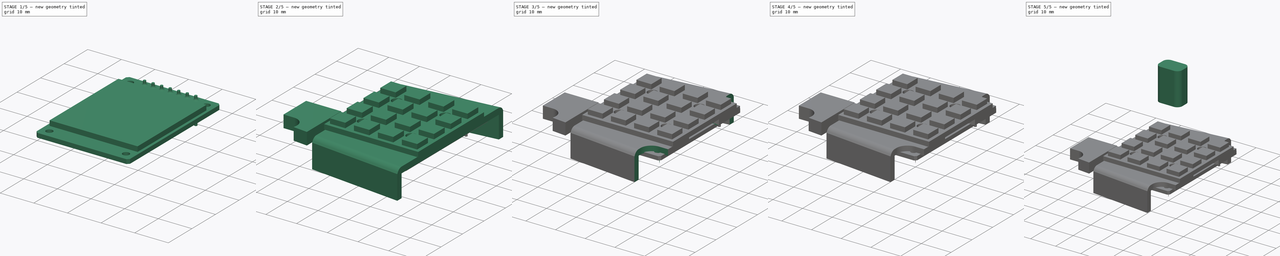
[diagram: build sequence overview — one tinted view per stage of 5, left to right]
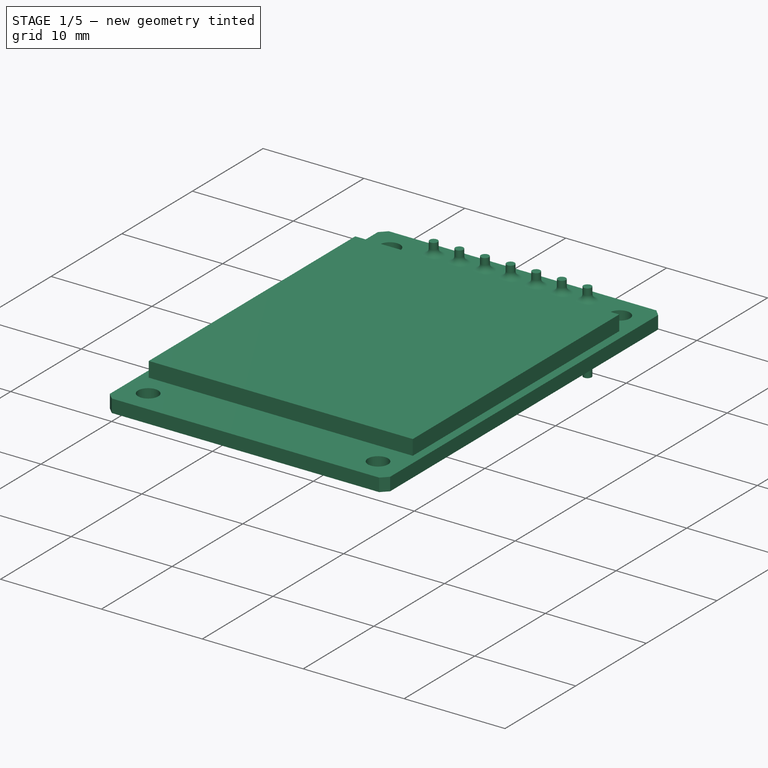
[diagram: stage 1 of 5 — iso view after this stage's code; geometry added in this stage tinted green]
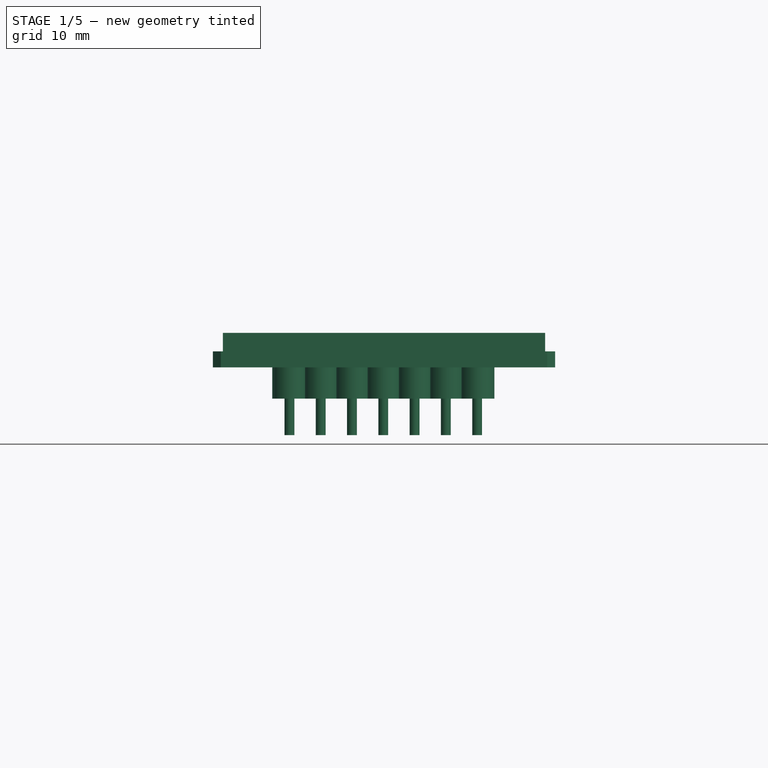
[diagram: stage 1 of 5 — front view after this stage's code; geometry added in this stage tinted green]
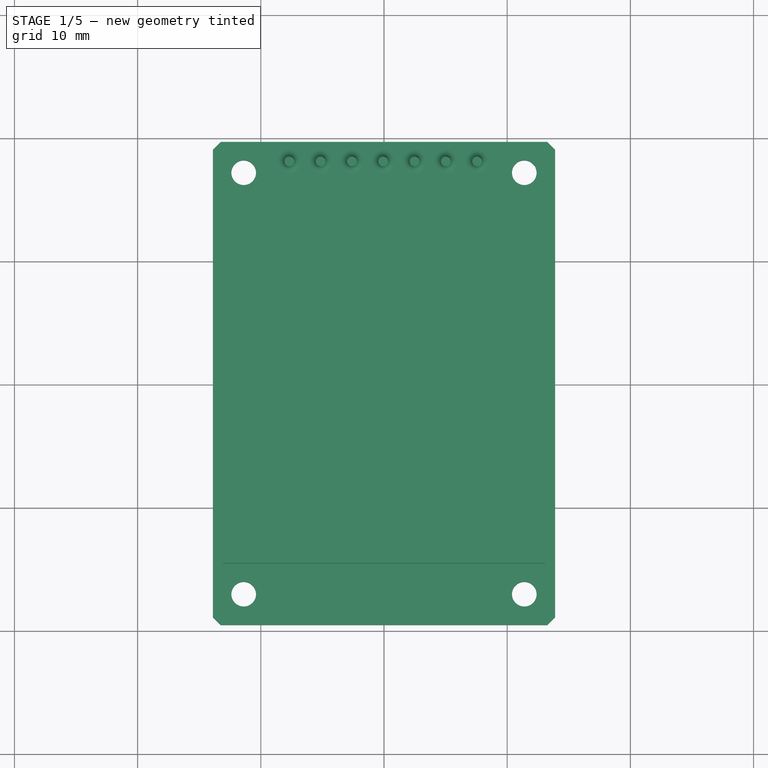
[diagram: stage 1 of 5 — top view after this stage's code; geometry added in this stage tinted green]
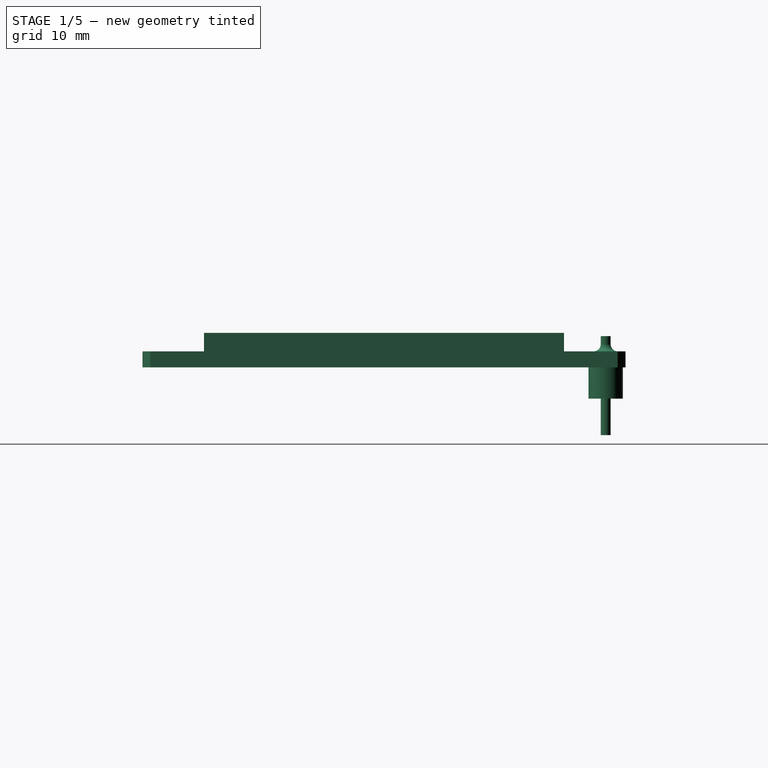
[diagram: stage 1 of 5 — right view after this stage's code; geometry added in this stage tinted green]
FCSTD DOCUMENT  (FreeCAD 0.20R29410 (Git))
Label: NightLight rotary 2
License: All rights reserved
LicenseURL: http://en.wikipedia.org/wiki/All_rights_reserved
objects: Sketcher::SketchObject×22, PartDesign::Body×10, PartDesign::Pocket×10, PartDesign::Pad×5, PartDesign::Revolution×5, PartDesign::PolarPattern×4, Part::Feature×2, PartDesign::LinearPattern×2, PartDesign::AdditiveLoft×1, PartDesign::Mirrored×1, Part::FeaturePython×1, App::Part×1
note: 84 computed .brp shape members not serialized (recipe doc carries the construction recipe); baked Part::Feature solids carry a one-line shape summary decoded from their .brp

FEATURE [Part::Feature] Part__Feature020  label="EC11E-05SW"
  Placement = pos=(16.9,27.3,-2.6) rot=(0,0,-1;3.14159rad)
  shape: bbox 11.71 x 15.08 x 23.16 mm, 583 faces (baked)
FEATURE [Sketcher::SketchObject] Sketch068  label="pcb"
  FullyConstrained = false
  MapMode = 5
  Support = -> [XY_Plane001]
  sketch-geometry (25):
    g0: LineSegment StartX=-13.25 StartY=19.61 StartZ=0 EndX=13.25 EndY=19.61 EndZ=0
    g1: LineSegment StartX=13.89 StartY=18.97 StartZ=0 EndX=13.89 EndY=-18.97 EndZ=0
    g2: LineSegment StartX=13.25 StartY=-19.61 StartZ=0 EndX=-13.25 EndY=-19.61 EndZ=0
    g3: LineSegment StartX=-13.89 StartY=-18.97 StartZ=0 EndX=-13.89 EndY=18.97 EndZ=0
    g4: LineSegment StartX=-13.25 StartY=19.61 StartZ=0 EndX=-13.89 EndY=18.97 EndZ=0
    g5: LineSegment StartX=-13.89 StartY=-18.97 StartZ=0 EndX=-13.25 EndY=-19.61 EndZ=0
    g6: LineSegment StartX=13.25 StartY=-19.61 StartZ=0 EndX=13.89 EndY=-18.97 EndZ=0
    g7: LineSegment StartX=13.89 StartY=18.97 StartZ=0 EndX=13.25 EndY=19.61 EndZ=0
    g8: LineSegment StartX=13.89 StartY=18.97 StartZ=0 EndX=13.89 EndY=19.61 EndZ=0
    g9: LineSegment StartX=13.89 StartY=19.61 StartZ=0 EndX=13.25 EndY=19.61 EndZ=0
    g10: LineSegment StartX=-13.25 StartY=19.61 StartZ=0 EndX=-13.89 EndY=19.61 EndZ=0
    g11: LineSegment StartX=-13.89 StartY=19.61 StartZ=0 EndX=-13.89 EndY=18.97 EndZ=0
    g12: LineSegment StartX=-13.89 StartY=-18.97 StartZ=0 EndX=-13.89 EndY=-19.61 EndZ=0
    g13: LineSegment StartX=-13.89 StartY=-19.61 StartZ=0 EndX=-13.25 EndY=-19.61 EndZ=0
    g14: LineSegment StartX=13.25 StartY=-19.61 StartZ=0 EndX=13.89 EndY=-19.61 EndZ=0
    g15: LineSegment StartX=13.89 StartY=-19.61 StartZ=0 EndX=13.89 EndY=-18.97 EndZ=0
    g16: LineSegment StartX=-11.39 StartY=17.11 StartZ=0 EndX=11.39 EndY=17.11 EndZ=0
    g17: LineSegment StartX=11.39 StartY=17.11 StartZ=0 EndX=11.39 EndY=-17.11 EndZ=0
    g18: LineSegment StartX=11.39 StartY=-17.11 StartZ=0 EndX=-11.39 EndY=-17.11 EndZ=0
    g19: LineSegment StartX=-11.39 StartY=-17.11 StartZ=0 EndX=-11.39 EndY=17.11 EndZ=0
    g20: Circle CenterX=11.39 CenterY=17.11 CenterZ=0 NormalX=0 NormalY=0 NormalZ=1 AngleXU=0 Radius=1
    g21: Circle CenterX=11.39 CenterY=17.11 CenterZ=0 NormalX=0 NormalY=0 NormalZ=1 AngleXU=0 Radius=2.5
    g22: Circle CenterX=-11.39 CenterY=17.11 CenterZ=0 NormalX=0 NormalY=0 NormalZ=1 AngleXU=0 Radius=1
    g23: Circle CenterX=-11.39 CenterY=-17.11 CenterZ=0 NormalX=0 NormalY=0 NormalZ=1 AngleXU=0 Radius=1
    g24: Circle CenterX=11.39 CenterY=-17.11 CenterZ=0 NormalX=0 NormalY=0 NormalZ=1 AngleXU=0 Radius=1
  constraints (62):
    c: Horizontal(g0)
    c: Horizontal(g2)
    c: Vertical(g1)
    c: Vertical(g3)
    c: Coincident(g4,g0)
    c: Coincident(g4,g3)
    c: Coincident(g3,g5)
    c: Coincident(g5,g2)
    c: Coincident(g2,g6)
    c: Coincident(g6,g1)
    c: Coincident(g1,g7)
    c: Coincident(g7,g0)
    c: Coincident(g1,g8)
    c: Vertical(g8)
    c: Coincident(g8,g9)
    c: Coincident(g9,g0)
    c: DistanceY(g8,g8) = 0.64
    c: Horizontal(g9)
    c: Equal(g8,g9)
    c: Coincident(g0,g10)
    c: Coincident(g10,g11)
    c: Coincident(g11,g3)
    c: Vertical(g11)
    c: Equal(g10,g11)
    c: Symmetric(g8,g10,g-2)
    c: Coincident(g3,g12)
    c: Vertical(g12)
    c: Coincident(g12,g13)
    c: Coincident(g13,g2)
    c: Coincident(g2,g14)
    c: Horizontal(g14)
    c: Coincident(g14,g15)
    c: Coincident(g15,g1)
    c: Equal(g8,g15)
    c: Equal(g15,g14)
    c: Equal(g14,g13)
    c: Equal(g13,g12)
    c: Horizontal(g13)
    c: Symmetric(g8,g14,g-1)
    c: DistanceX(g10,g8) = 27.78
    c: Equal(g10,g9)
    c: DistanceY(g14,g8) = 39.22
    c: Coincident(g16,g17)
    c: Coincident(g17,g18)
    c: Coincident(g18,g19)
    c: Coincident(g19,g16)
    c: Horizontal(g18)
    c: Vertical(g19)
    c: Symmetric(g16,g16,g-2)
    c: Symmetric(g17,g16,g-1)
    c: Coincident(g20,g16)
    c: Radius(g20) = 1
    c: Coincident(g21,g20)
    c: Tangent(g21,g1)
    c: Tangent(g0,g21)
    c: DistanceX(g20,g8) = 2.5
    c: Coincident(g22,g16)
    c: Coincident(g23,g18)
    c: Coincident(g24,g17)
    c: Equal(g20,g22)
    c: Equal(g22,g23)
    c: Equal(g23,g24)
FEATURE [PartDesign::Pad] Pad021  label="PCB"
  AllowMultiFace = false
  Direction = (1,1,1)
  Length = 1.3
  Length2 = 100
  Profile = -> Sketch068
  Type = 0
FEATURE [Sketcher::SketchObject] Sketch001  label="glass"
  AttachmentOffset = pos=(0,0,2.8) rot=(0,0,1;0rad)
  ExternalGeometry = -> [Pad021]
  FullyConstrained = false
  MapMode = 5
  Placement = pos=(0,0,2.8) rot=(0,0,1;0rad)
  Support = -> [XY_Plane002]
  sketch-geometry (4):
    g0: LineSegment StartX=13.08 StartY=14.61 StartZ=0 EndX=-13.08 EndY=14.61 EndZ=0
    g1: LineSegment StartX=-13.08 StartY=14.61 StartZ=0 EndX=-13.08 EndY=-14.61 EndZ=0
    g2: LineSegment StartX=-13.08 StartY=-14.61 StartZ=0 EndX=13.08 EndY=-14.61 EndZ=0
    g3: LineSegment StartX=13.08 StartY=-14.61 StartZ=0 EndX=13.08 EndY=14.61 EndZ=0
  constraints (11):
    c: Coincident(g0,g1)
    c: Coincident(g1,g2)
    c: Coincident(g2,g3)
    c: Horizontal(g2)
    c: Vertical(g1)
    c: Symmetric(g0,g0,g-2)
    c: DistanceY(g3,g3) = 29.22
    c: Vertical(g3)
    c: DistanceY(g0,g-3) = 5
    c: DistanceX(g0,g-3) = 0.81
    c: Coincident(g3,g0)
FEATURE [Sketcher::SketchObject] Sketch002  label="pinHole"
  ExternalGeometry = -> [Pad021]
  FullyConstrained = false
  MapMode = 5
  Support = -> [XY_Plane001]
  sketch-geometry (1):
    g0: Circle CenterX=-7.62 CenterY=18.01 CenterZ=0 NormalX=0 NormalY=0 NormalZ=1 AngleXU=0 Radius=0.5
  constraints (3):
    c: DistanceX(g-3,g0) = 6.27
    c: DistanceY(g0,g-3) = 1.6
    c: Radius(g0) = 0.5
FEATURE [PartDesign::Pad] Pad001  label="Glass"
  AllowMultiFace = false
  Direction = (1,1,1)
  Length = 2
  Length2 = 100
  Profile = -> Sketch001
  Reversed = true
  Type = 0
FEATURE [PartDesign::Body] Body001  label="GLASS"
  Group = -> [Sketch001,Pad001,Sketch003,Pocket001,Sketch004,Pad002]
  Origin = -> Origin002
  Tip = -> Pad002
FEATURE [PartDesign::Pocket] Pocket  label="FirstPinhole"
  AllowMultiFace = false
  BaseFeature = -> Pad021
  Direction = (1,1,1)
  Length = 5
  Length2 = 100
  Midplane = true
  Profile = -> Sketch002
  Type = 1
FEATURE [PartDesign::LinearPattern] LinearPattern
  BaseFeature = -> Pocket
  Direction = -> X_Axis001
  Length = 15.24
  Occurrences = 7
  Originals = -> [Pocket]
FEATURE [PartDesign::Body] Body013  label="SCREEN"
  Group = -> [Sketch068,Pad021,Sketch002,Pocket,LinearPattern]
  Origin = -> Origin001
  Tip = -> LinearPattern
FEATURE [Sketcher::SketchObject] Sketch005
  AttachmentOffset = pos=(0,0,-7.68) rot=(0,0,1;0rad)
  FullyConstrained = false
  MapMode = 5
  Placement = pos=(-7.68,1.7e-15,-1.7e-15) rot=(0.57735,0.57735,0.57735;2.0944rad)
  Support = -> [YZ_Plane003]
  sketch-geometry (12):
    g0: LineSegment StartX=18 StartY=2.54 StartZ=0 EndX=18 EndY=-5.5 EndZ=0
    g1: LineSegment StartX=18 StartY=-5.5 StartZ=0 EndX=18.4 EndY=-5.5 EndZ=0
    g2: LineSegment StartX=18.4 StartY=-5.5 StartZ=0 EndX=18.4 EndY=-2.54 EndZ=0
    g3: LineSegment StartX=18.4 StartY=0 StartZ=0 EndX=18.4 EndY=1.3 EndZ=0
    g4: LineSegment StartX=18.4 StartY=2.54 StartZ=0 EndX=18 EndY=2.54 EndZ=0
    g5: LineSegment StartX=18 StartY=2.54 StartZ=0 EndX=18 EndY=3.84 EndZ=0
    g6: ArcOfCircle CenterX=19 CenterY=1.9 CenterZ=0 NormalX=0 NormalY=0 NormalZ=1 AngleXU=0 Radius=0.6 StartAngle=3.14159 EndAngle=4.71239
    g7: LineSegment StartX=19 StartY=1.3 StartZ=0 EndX=18.4 EndY=1.3 EndZ=0
    g8: LineSegment StartX=18.4 StartY=1.9 StartZ=0 EndX=18.4 EndY=2.54 EndZ=0
    g9: LineSegment StartX=18.4 StartY=-2.54 StartZ=0 EndX=19.397 EndY=-2.54 EndZ=0
    g10: LineSegment StartX=19.397 StartY=-2.54 StartZ=0 EndX=19.397 EndY=0 EndZ=0
    g11: LineSegment StartX=19.397 StartY=0 StartZ=0 EndX=18.4 EndY=0 EndZ=0
  constraints (34):
    c: Vertical(g0)
    c: Coincident(g0,g1)
    c: Horizontal(g1)
    c: Coincident(g1,g2)
    c: Vertical(g2)
    c: Vertical(g3)
    c: Coincident(g8,g4)
    c: Coincident(g4,g0)
    c: Horizontal(g4)
    c: PointOnObject(g2,g3)
    c: Coincident(g5,g0)
    c: DistanceX(g4,g4) = 0.4
    c: Vertical(g5)
    c: DistanceY(g8) = 2.54
    c: DistanceY(g1,g-1) = 5.5
    c: Equal(g3,g5)
    c: DistanceX(g5) = 18
    c: Horizontal(g7)
    c: Tangent(g3,g8)
    c: Tangent(g6,g8) = 1.5708
    c: Coincident(g3,g7)
    c: Tangent(g6,g7) = 1.5708
    c: DistanceY(g6) = 1.3
    c: Radius(g6) = 0.6
    c: Coincident(g9,g10)
    c: Coincident(g10,g11)
    c: Horizontal(g9)
    c: Horizontal(g11)
    c: Vertical(g10)
    c: Coincident(g9,g2)
    c: Coincident(g11,g3)
    c: PointOnObject(g10,g-1)
    c: DistanceY(g10,g10) = 2.54
    c: DistanceX(g0,g9) = 1.397
FEATURE [PartDesign::Revolution] Revolution
  AllowMultiFace = false
  Angle = 360
  Axis = (-3e-16,4e-16,1.3)
  Base = (-7.68,18,2.54)
  Placement = pos=(0,0,0) rot=(0.57735,0.57735,0.57735;2.0944rad)
  Profile = -> Sketch005
  ReferenceAxis = -> Sketch005 [Axis0]
  Reversed = true
FEATURE [PartDesign::LinearPattern] LinearPattern001
  BaseFeature = -> Revolution
  Direction = -> X_Axis003
  Length = 15.24
  Occurrences = 7
  Originals = -> [Revolution]
  Placement = pos=(0,0,0) rot=(0.57735,0.57735,0.57735;2.0944rad)
FEATURE [PartDesign::Body] Body002  label="FIRSTPIN"
  Group = -> [Sketch005,Revolution,LinearPattern001]
  Origin = -> Origin003
  Tip = -> LinearPattern001
FEATURE [App::Part] Part  label="1.3"Screen"
  Group = -> [Body013,Body001,Body002]
  Origin = -> Origin009
  Placement = pos=(19.4,-0.8,3.4) rot=(0.707107,0,0.707107;3.14159rad)
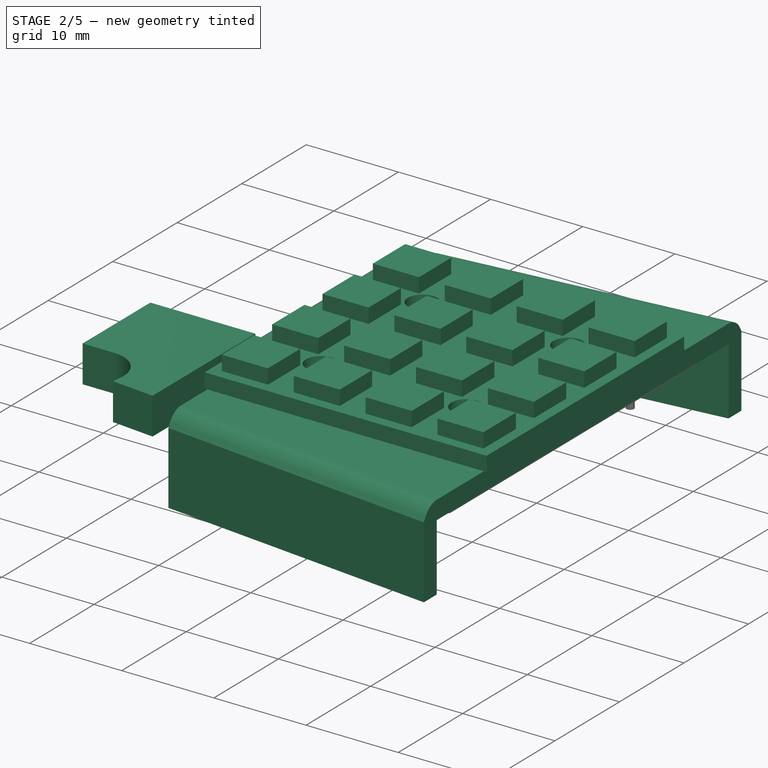
[diagram: stage 2 of 5 — iso view after this stage's code; geometry added in this stage tinted green]
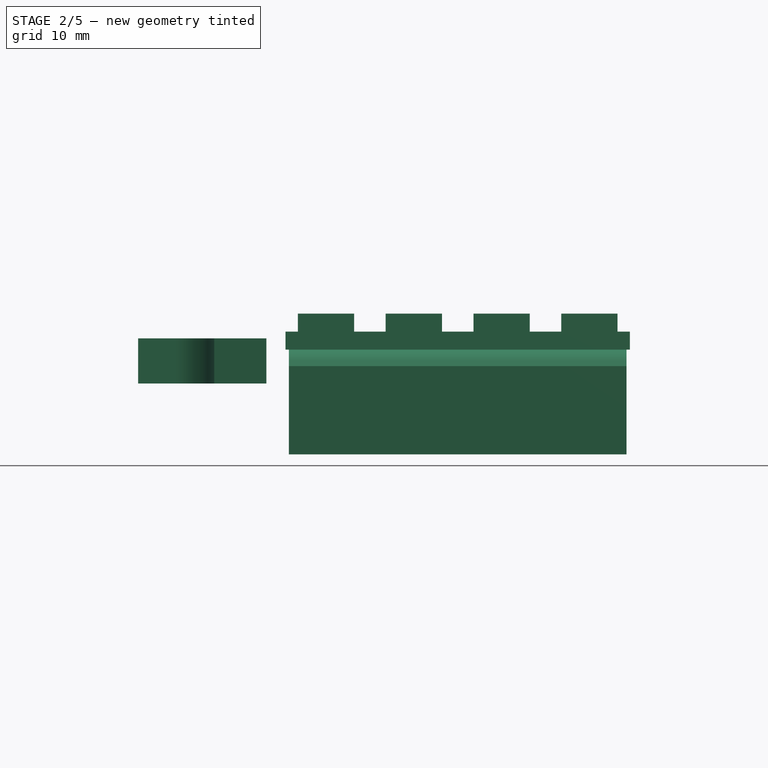
[diagram: stage 2 of 5 — front view after this stage's code; geometry added in this stage tinted green]
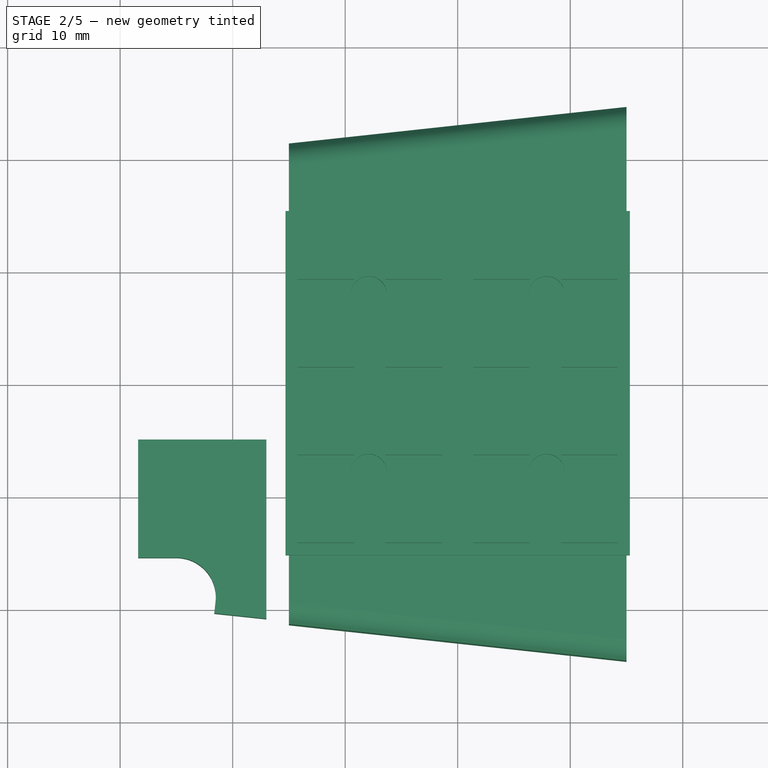
[diagram: stage 2 of 5 — top view after this stage's code; geometry added in this stage tinted green]
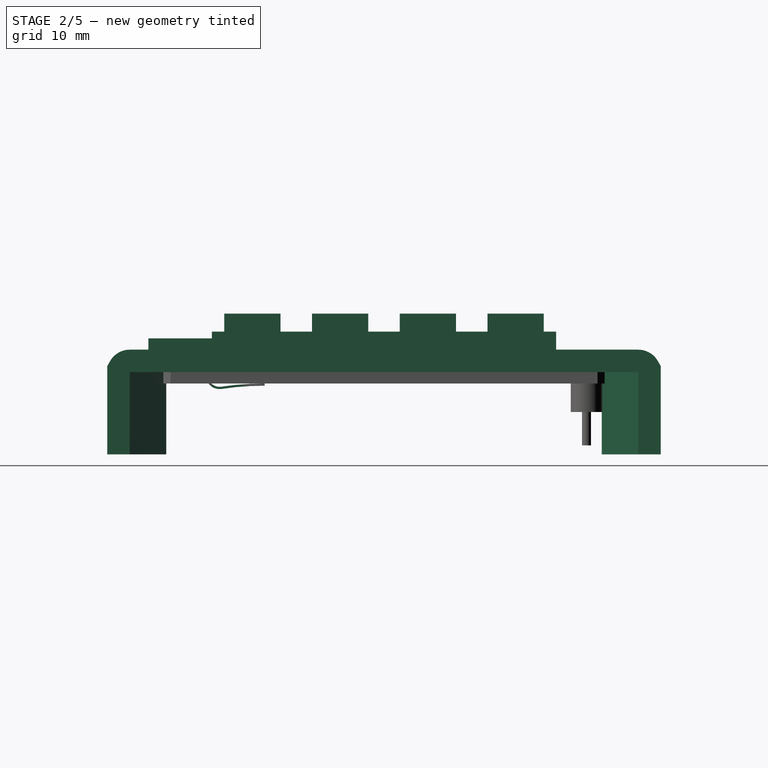
[diagram: stage 2 of 5 — right view after this stage's code; geometry added in this stage tinted green]
FEATURE [PartDesign::Body] Body009  label="SelftappingScrew 2.3x12 - Bottom4"
  Group = -> [Sketch017,Revolution005,Sketch018,Pocket005,PolarPattern005]
  Placement = pos=(12,-21,-6.7) rot=(0,1,0;3.14159rad)
  Tip = -> PolarPattern005
FEATURE [Sketcher::SketchObject] Sketch046  label="m base shape -15"
  AttachmentOffset = pos=(0,0,-15) rot=(0,0,1;0rad)
  FullyConstrained = false
  MapMode = 5
  Placement = pos=(-15,3.3e-15,-3.3e-15) rot=(0.57735,0.57735,0.57735;2.0944rad)
  Support = -> [YZ_Plane007]
  sketch-geometry (12):
    g0: LineSegment StartX=-19.35 StartY=3 StartZ=0 EndX=19.35 EndY=3 EndZ=0
    g1: LineSegment StartX=21.35 StartY=1.5359 StartZ=0 EndX=21.35 EndY=-6.3 EndZ=0
    g2: LineSegment StartX=21.35 StartY=-6.3 StartZ=0 EndX=19.35 EndY=-6.3 EndZ=0
    g3: LineSegment StartX=-21.35 StartY=-6.3 StartZ=0 EndX=-21.35 EndY=1.5359 EndZ=0
    g4: LineSegment StartX=-19.35 StartY=-6.3 StartZ=0 EndX=-19.35 EndY=1 EndZ=0
    g5: LineSegment StartX=-19.35 StartY=1 StartZ=0 EndX=19.35 EndY=1 EndZ=0
    g6: LineSegment StartX=19.35 StartY=1 StartZ=0 EndX=19.35 EndY=-6.3 EndZ=0
    g7: LineSegment StartX=-19.35 StartY=-6.3 StartZ=0 EndX=-21.35 EndY=-6.3 EndZ=0
    g8: ArcOfCircle CenterX=-19.35 CenterY=1 CenterZ=0 NormalX=0 NormalY=0 NormalZ=1 AngleXU=0 Radius=2 StartAngle=1.5708 EndAngle=2.61799
    g9: LineSegment StartX=-21.0821 StartY=2 StartZ=0 EndX=-21.35 EndY=1.5359 EndZ=0
    g10: ArcOfCircle CenterX=19.35 CenterY=1 CenterZ=0 NormalX=0 NormalY=0 NormalZ=1 AngleXU=0 Radius=2 StartAngle=0.523599 EndAngle=1.5708
    g11: LineSegment StartX=21.0821 StartY=2 StartZ=0 EndX=21.35 EndY=1.5359 EndZ=0
  constraints (29):
    c: Coincident(g1,g2)
    c: Coincident(g7,g3)
    c: Horizontal(g0)
    c: Vertical(g1)
    c: Vertical(g3)
    c: Coincident(g4,g5)
    c: Coincident(g5,g6)
    c: Vertical(g4)
    c: Vertical(g6)
    c: Tangent(g2,g7)
    c: Coincident(g4,g7)
    c: Coincident(g6,g2)
    c: DistanceY(g2,g-1) = 6.3
    c: Symmetric(g3,g1,g-2)
    c: Coincident(g8,g4)
    c: Tangent(g0,g8) = 1.5708
    c: DistanceY(g0) = 3
    c: DistanceX(g7,g7) = 2
    c: DistanceY(g4) = 1
    c: Tangent(g9,g8) = -1.5708
    c: Coincident(g3,g9)
    c: Angle(g9,g4) = 0.523599
    c: Symmetric(g5,g4,g-2)
    c: Coincident(g10,g5)
    c: Tangent(g0,g10) = 1.5708
    c: Tangent(g10,g11) = 1.5708
    c: Coincident(g1,g11)
    c: Horizontal(g1,g3)
    c: DistanceX(g3,g1) = 42.7
FEATURE [Sketcher::SketchObject] Sketch047  label="m screw holes"
  FullyConstrained = false
  MapMode = 5
  Support = -> [XY_Plane007]
  sketch-geometry (8):
    g0: LineSegment StartX=7.9 StartY=7.9 StartZ=0 EndX=-7.9 EndY=7.9 EndZ=0
    g1: LineSegment StartX=-7.9 StartY=7.9 StartZ=0 EndX=-7.9 EndY=-7.9 EndZ=0
    g2: LineSegment StartX=-7.9 StartY=-7.9 StartZ=0 EndX=7.9 EndY=-7.9 EndZ=0
    g3: LineSegment StartX=7.9 StartY=-7.9 StartZ=0 EndX=7.9 EndY=7.9 EndZ=0
    g4: Circle CenterX=7.9 CenterY=7.9 CenterZ=0 NormalX=0 NormalY=0 NormalZ=1 AngleXU=0 Radius=0.8
    g5: Circle CenterX=-7.9 CenterY=7.9 CenterZ=0 NormalX=0 NormalY=0 NormalZ=1 AngleXU=0 Radius=0.8
    g6: Circle CenterX=-7.9 CenterY=-7.9 CenterZ=0 NormalX=0 NormalY=0 NormalZ=1 AngleXU=0 Radius=0.8
    g7: Circle CenterX=7.9 CenterY=-7.9 CenterZ=0 NormalX=0 NormalY=0 NormalZ=1 AngleXU=0 Radius=0.8
  constraints (18):
    c: Coincident(g0,g1)
    c: Coincident(g1,g2)
    c: Coincident(g2,g3)
    c: Coincident(g3,g0)
    c: Horizontal(g2)
    c: Vertical(g1)
    c: Equal(g3,g0)
    c: Symmetric(g0,g2,g-1)
    c: Symmetric(g0,g0,g-2)
    c: DistanceX(g0,g0) = 15.8
    c: Coincident(g4,g0)
    c: Radius(g4) = 0.8
    c: Coincident(g5,g0)
    c: Coincident(g6,g1)
    c: Coincident(g7,g2)
    c: Equal(g4,g7)
    c: Equal(g7,g6)
    c: Equal(g6,g5)
FEATURE [Sketcher::SketchObject] Sketch048  label="m wire cut"
  FullyConstrained = false
  MapMode = 5
  Support = -> [XY_Plane007]
  sketch-geometry (4):
    g0: LineSegment StartX=9 StartY=5 StartZ=0 EndX=16 EndY=7.54779 EndZ=0
    g1: LineSegment StartX=16 StartY=7.54779 StartZ=0 EndX=16 EndY=-7.54779 EndZ=0
    g2: LineSegment StartX=16 StartY=-7.54779 StartZ=0 EndX=9 EndY=-5 EndZ=0
    g3: LineSegment StartX=9 StartY=-5 StartZ=0 EndX=9 EndY=5 EndZ=0
  constraints (10):
    c: Coincident(g0,g1)
    c: Coincident(g1,g2)
    c: Coincident(g2,g3)
    c: Coincident(g3,g0)
    c: Symmetric(g2,g0,g-1)
    c: Symmetric(g1,g0,g-1)
    c: DistanceX(g2) = 9
    c: DistanceY(g3,g3) = 10
    c: Angle(g2,g0) = 0.698132
    c: DistanceX(g0,g0) = 7
FEATURE [Sketcher::SketchObject] Sketch050  label="m corner cutout"
  FullyConstrained = false
  MapMode = 5
  Support = -> [XY_Plane007]
  sketch-geometry (5):
    g0: LineSegment StartX=8.3 StartY=30 StartZ=0 EndX=18.3 EndY=30 EndZ=0
    g1: LineSegment StartX=18.3 StartY=30 StartZ=0 EndX=18.3 EndY=17.3 EndZ=0
    g2: LineSegment StartX=8.3 StartY=21 StartZ=0 EndX=8.3 EndY=30 EndZ=0
    g3: ArcOfCircle CenterX=12 CenterY=21 CenterZ=0 NormalX=0 NormalY=0 NormalZ=1 AngleXU=0 Radius=3.7 StartAngle=3.14159 EndAngle=4.71239
    g4: LineSegment StartX=12 StartY=17.3 StartZ=0 EndX=18.3 EndY=17.3 EndZ=0
  constraints (14):
    c: Coincident(g0,g1)
    c: Coincident(g2,g0)
    c: Horizontal(g0)
    c: Vertical(g1)
    c: DistanceX(g0,g0) = 10
    c: DistanceX(g2) = 8.3
    c: Vertical(g2)
    c: DistanceY(g0) = 30
    c: Horizontal(g4)
    c: DistanceX(g3) = 12
    c: DistanceY(g3) = 21
    c: Tangent(g3,g4) = -1.5708
    c: Coincident(g4,g1)
    c: Tangent(g2,g3) = 1.5708
FEATURE [Sketcher::SketchObject] Sketch058  label="m base shape +15"
  AttachmentOffset = pos=(0,0,15) rot=(0,0,1;0rad)
  FullyConstrained = false
  MapMode = 5
  Placement = pos=(15,-3.3e-15,3.3e-15) rot=(0.57735,0.57735,0.57735;2.0944rad)
  Support = -> [YZ_Plane007]
  sketch-geometry (12):
    g0: LineSegment StartX=-22.6 StartY=3 StartZ=0 EndX=22.6 EndY=3 EndZ=0
    g1: LineSegment StartX=24.6 StartY=1.5359 StartZ=0 EndX=24.6 EndY=-6.3 EndZ=0
    g2: LineSegment StartX=24.6 StartY=-6.3 StartZ=0 EndX=22.6 EndY=-6.3 EndZ=0
    g3: LineSegment StartX=-24.6 StartY=-6.3 StartZ=0 EndX=-24.6 EndY=1.5359 EndZ=0
    g4: LineSegment StartX=-22.6 StartY=-6.3 StartZ=0 EndX=-22.6 EndY=1 EndZ=0
    g5: LineSegment StartX=-22.6 StartY=1 StartZ=0 EndX=22.6 EndY=1 EndZ=0
    g6: LineSegment StartX=22.6 StartY=1 StartZ=0 EndX=22.6 EndY=-6.3 EndZ=0
    g7: LineSegment StartX=-22.6 StartY=-6.3 StartZ=0 EndX=-24.6 EndY=-6.3 EndZ=0
    g8: ArcOfCircle CenterX=-22.6 CenterY=1 CenterZ=0 NormalX=0 NormalY=0 NormalZ=1 AngleXU=0 Radius=2 StartAngle=1.5708 EndAngle=2.61799
    g9: LineSegment StartX=-24.3321 StartY=2 StartZ=0 EndX=-24.6 EndY=1.5359 EndZ=0
    g10: ArcOfCircle CenterX=22.6 CenterY=1 CenterZ=0 NormalX=0 NormalY=0 NormalZ=1 AngleXU=0 Radius=2 StartAngle=0.523599 EndAngle=1.5708
    g11: LineSegment StartX=24.3321 StartY=2 StartZ=0 EndX=24.6 EndY=1.5359 EndZ=0
  constraints (29):
    c: Coincident(g1,g2)
    c: Coincident(g7,g3)
    c: Horizontal(g0)
    c: Vertical(g1)
    c: Vertical(g3)
    c: Coincident(g4,g5)
    c: Coincident(g5,g6)
    c: Vertical(g4)
    c: Vertical(g6)
    c: Tangent(g2,g7)
    c: Coincident(g4,g7)
    c: Coincident(g6,g2)
    c: DistanceY(g2,g-1) = 6.3
    c: Symmetric(g3,g1,g-2)
    c: Coincident(g8,g4)
    c: Tangent(g0,g8) = 1.5708
    c: DistanceY(g0) = 3
    c: DistanceX(g7,g7) = 2
    c: DistanceY(g4) = 1
    c: Tangent(g9,g8) = -1.5708
    c: Coincident(g3,g9)
    c: Angle(g9,g4) = 0.523599
    c: Symmetric(g5,g4,g-2)
    c: Coincident(g10,g5)
    c: Tangent(g0,g10) = 1.5708
    c: Tangent(g10,g11) = 1.5708
    c: Coincident(g1,g11)
    c: Horizontal(g1,g3)
    c: DistanceX(g3,g1) = 49.2
FEATURE [PartDesign::AdditiveLoft] AdditiveLoft  label="M Base shape"
  AllowMultiFace = false
  Closed = false
  Placement = pos=(0,0,0) rot=(0.57735,0.57735,0.57735;2.0944rad)
  Profile = -> Sketch046
  Ruled = false
  Sections = -> [Sketch058]
FEATURE [PartDesign::Body] Body011  label="Bridge"
  Group = -> [Sketch046,Sketch047,Sketch048,Sketch050,Sketch058,AdditiveLoft,Pocket027,Pocket028,Pocket030,Mirrored011]
  Origin = -> Origin007
  Tip = -> Mirrored011
FEATURE [Sketcher::SketchObject] Sketch066  label="l baseshape"
  FullyConstrained = false
  MapMode = 5
  Support = -> [XY_Plane008]
  sketch-geometry (7):
    g0: LineSegment StartX=-28.4 StartY=-5 StartZ=0 EndX=-17 EndY=-5 EndZ=0
    g1: LineSegment StartX=-17 StartY=-5 StartZ=0 EndX=-17 EndY=-20.9377 EndZ=0
    g2: LineSegment StartX=-17 StartY=-20.9377 StartZ=0 EndX=-21.6332 EndY=-20.4507 EndZ=0
    g3: LineSegment StartX=-28.4 StartY=-15.5 StartZ=0 EndX=-28.4 EndY=-5 EndZ=0
    g4: ArcOfCircle CenterX=-25 CenterY=-19 CenterZ=0 NormalX=0 NormalY=0 NormalZ=1 AngleXU=0 Radius=3.5 StartAngle=6.17847 EndAngle=7.85398
    g5: LineSegment StartX=-25 StartY=-15.5 StartZ=0 EndX=-28.4 EndY=-15.5 EndZ=0
    g6: LineSegment StartX=-21.5192 StartY=-19.3658 StartZ=0 EndX=-21.6332 EndY=-20.4507 EndZ=0
  constraints (20):
    c: Coincident(g0,g1)
    c: Coincident(g1,g2)
    c: Coincident(g3,g0)
    c: Horizontal(g0)
    c: Vertical(g1)
    c: Vertical(g3)
    c: DistanceX(g0,g-1) = 17
    c: DistanceY(g0,g-1) = 5
    c: Angle(g2,g-1) = 0.10472
    c: DistanceY(g4,g-1) = 19
    c: DistanceX(g4,g-1) = 25
    c: Radius(g4) = 3.5
    c: Horizontal(g5)
    c: Tangent(g4,g5) = -1.5708
    c: Tangent(g4,g6) = 1.5708
    c: Coincident(g2,g6)
    c: Coincident(g3,g5)
    c: Distance(g-1,g2) = 22.6
    c: Perpendicular(g2,g6)
    c: DistanceX(g0,g-1) = 28.4
FEATURE [PartDesign::Pad] Pad020  label="L Baseshape"
  AllowMultiFace = false
  Direction = (1,1,1)
  Length = 4
  Length2 = 100
  Profile = -> Sketch066
  Type = 0
FEATURE [Sketcher::SketchObject] Sketch067  label="l pocket components"
  AttachmentOffset = pos=(0,0,1.5) rot=(0,0,1;0rad)
  ExternalGeometry = -> [Pad020]
  FullyConstrained = false
  MapMode = 5
  Placement = pos=(0,0,1.5) rot=(0,0,1;0rad)
  Support = -> [XY_Plane008]
  sketch-geometry (10):
    g0: LineSegment StartX=-20.6 StartY=-6 StartZ=0 EndX=-18 EndY=-6 EndZ=0
    g1: LineSegment StartX=-18 StartY=-6 StartZ=0 EndX=-18 EndY=-14.5 EndZ=0
    g2: LineSegment StartX=-18 StartY=-14.5 StartZ=0 EndX=-27.4 EndY=-14.5 EndZ=0
    g3: LineSegment StartX=-27.4 StartY=-14.5 StartZ=0 EndX=-27.4 EndY=-6 EndZ=0
    g4: LineSegment StartX=-24.2 StartY=-4 StartZ=0 EndX=-20.6 EndY=-4 EndZ=0
    g5: LineSegment StartX=-20.6 StartY=-4 StartZ=0 EndX=-20.6 EndY=-6 EndZ=0
    g6: LineSegment StartX=-24.2 StartY=-6 StartZ=0 EndX=-24.2 EndY=-4 EndZ=0
    g7: LineSegment StartX=-27.4 StartY=-6 StartZ=0 EndX=-24.2 EndY=-6 EndZ=0
    g8: Circle CenterX=-28.4 CenterY=-15.5 CenterZ=0 NormalX=0 NormalY=0 NormalZ=1 AngleXU=0 Radius=1
    g9: Circle CenterX=-17 CenterY=-5 CenterZ=0 NormalX=0 NormalY=0 NormalZ=1 AngleXU=0 Radius=1
  constraints (28):
    c: Coincident(g0,g1)
    c: Coincident(g1,g2)
    c: Coincident(g2,g3)
    c: Horizontal(g0)
    c: Horizontal(g2)
    c: Vertical(g1)
    c: Vertical(g3)
    c: Coincident(g4,g5)
    c: Coincident(g6,g4)
    c: Horizontal(g4)
    c: Vertical(g5)
    c: Vertical(g6)
    c: Coincident(g5,g0)
    c: DistanceX(g6,g0) = 3.6
    c: DistanceY(g6,g6) = 2
    c: Coincident(g7,g3)
    c: Coincident(g7,g6)
    c: Horizontal(g7)
    c: PointOnObject(g0,g7)
    c: DistanceX(g7,g7) = 3.2
    c: Coincident(g8,g-3)
    c: Tangent(g3,g8)
    c: Tangent(g8,g2)
    c: Coincident(g9,g-4)
    c: Tangent(g9,g0)
    c: Tangent(g9,g1)
    c: Radius(g9) = 1
    c: Equal(g8,g9)
FEATURE [PartDesign::Pocket] Pocket041  label="L pocket components"
  AllowMultiFace = false
  BaseFeature = -> Pad020
  Direction = (1,1,1)
  Length = 5
  Length2 = 100
  Profile = -> Sketch067
  Type = 1
FEATURE [PartDesign::Body] Body012  label="LightCover"
  Group = -> [Sketch066,Pad020,Sketch067,Pocket041]
  Origin = -> Origin008
  Placement = pos=(0,0,-4) rot=(0,0,1;0rad)
  Tip = -> Pocket041
FEATURE [Part::FeaturePython] b_WS2812B_4x4_001_  label="WS2812B 4x4_001"  # a2plus imported part (geometry in sourceFile) (typed FeaturePython)
  Placement = pos=(0,0,3) rot=(0,0,1;0rad)
  a2p_Version = V0.1
  fixedPosition = true
  objectType = a2pPart
  sourceFile = .\WS2812B 4x4.FCStd
  subassemblyImport = false
  timeLastImport = 1.61813e+09
  updateColors = true
FEATURE [Sketcher::SketchObject] Sketch003  label="pixelArea"
  AttachmentOffset = pos=(0,0,2.65) rot=(0,0,1;0rad)
  ExternalGeometry = -> [Pad001]
  FullyConstrained = false
  MapMode = 5
  Placement = pos=(0,0,2.65) rot=(0,0,1;0rad)
  Support = -> [XY_Plane002]
  sketch-geometry (5):
    g0: LineSegment StartX=-11.7 StartY=13.28 StartZ=0 EndX=11.7 EndY=13.28 EndZ=0
    g1: LineSegment StartX=11.7 StartY=13.28 StartZ=0 EndX=11.7 EndY=-10.12 EndZ=0
    g2: LineSegment StartX=11.7 StartY=-10.12 StartZ=0 EndX=-11.7 EndY=-10.12 EndZ=0
    g3: LineSegment StartX=-11.7 StartY=-10.12 StartZ=0 EndX=-11.7 EndY=13.28 EndZ=0
    g4: LineSegment StartX=11.7 StartY=1.58 StartZ=0 EndX=-11.7 EndY=1.58 EndZ=0
  constraints (14):
    c: Coincident(g0,g1)
    c: Coincident(g1,g2)
    c: Coincident(g2,g3)
    c: Coincident(g3,g0)
    c: Horizontal(g2)
    c: Vertical(g1)
    c: Vertical(g3)
    c: Equal(g1,g0)
    c: DistanceX(g0,g0) = 23.4
    c: DistanceY(g0,g-3) = 1.33
    c: Symmetric(g0,g0,g-2)
    c: PointOnObject(g4,g1)
    c: PointOnObject(g4,g3)
    c: DistanceY(g-1,g4) = 1.58
FEATURE [PartDesign::Pocket] Pocket001  label="PixelArea"
  AllowMultiFace = false
  BaseFeature = -> Pad001
  Direction = (1,1,1)
  Length = 5
  Length2 = 100
  Profile = -> Sketch003
  Reversed = true
  Type = 1
FEATURE [Sketcher::SketchObject] Sketch004  label="flatcable"
  ExternalGeometry = -> [Pocket001]
  FullyConstrained = false
  MapMode = 5
  Placement = pos=(0,0,0) rot=(0.57735,0.57735,0.57735;2.0944rad)
  Support = -> [YZ_Plane002]
  sketch-geometry (7):
    g0: ArcOfCircle CenterX=-14.61 CenterY=0.75 CenterZ=0 NormalX=0 NormalY=0 NormalZ=1 AngleXU=0 Radius=1.25 StartAngle=1.5708 EndAngle=4.86211
    g1: ArcOfCircle CenterX=-14.61 CenterY=0.75 CenterZ=0 NormalX=0 NormalY=0 NormalZ=1 AngleXU=0 Radius=1.05 StartAngle=1.5708 EndAngle=4.86211
    g2: LineSegment StartX=-14.61 StartY=2 StartZ=0 EndX=-14.61 EndY=1.8 EndZ=0
    g3: ArcOfCircle CenterX=-10.61 CenterY=-25.7667 CenterZ=0 NormalX=0 NormalY=0 NormalZ=1 AngleXU=0 Radius=25.7667 StartAngle=1.5708 EndAngle=1.72052
    g4: ArcOfCircle CenterX=-10.61 CenterY=-25.7667 CenterZ=0 NormalX=0 NormalY=0 NormalZ=1 AngleXU=0 Radius=25.5667 StartAngle=1.5708 EndAngle=1.72052
    g5: LineSegment StartX=-14.61 StartY=0.8 StartZ=0 EndX=-14.61 EndY=-0.5 EndZ=0
    g6: LineSegment StartX=-10.61 StartY=0 StartZ=0 EndX=-10.61 EndY=-0.2 EndZ=0
  constraints (21):
    c: Coincident(g1,g0)
    c: Coincident(g2,g0)
    c: Coincident(g2,g1)
    c: PointOnObject(g0,g2)
    c: Vertical(g2)
    c: DistanceY(g0) = 2
    c: DistanceY(g2,g2) = 0.2
    c: PointOnObject(g0,g-3)
    c: PointOnObject(g3,g-1)
    c: Coincident(g4,g3)
    c: Tangent(g3,g1) = 1.5708
    c: Tangent(g4,g0) = 1.5708
    c: Coincident(g5,g-3)
    c: PointOnObject(g5,g0)
    c: Vertical(g5)
    c: DistanceY(g5,g-1) = 0.5
    c: Coincident(g6,g3)
    c: Coincident(g6,g4)
    c: Vertical(g6)
    c: PointOnObject(g3,g6)
    c: DistanceX(g-3,g4) = 4
FEATURE [PartDesign::Pad] Pad002  label="FlatCable"
  AllowMultiFace = false
  BaseFeature = -> Pocket001
  Direction = (1,1,1)
  Length = 21
  Length2 = 100
  Midplane = true
  Profile = -> Sketch004
  Type = 0
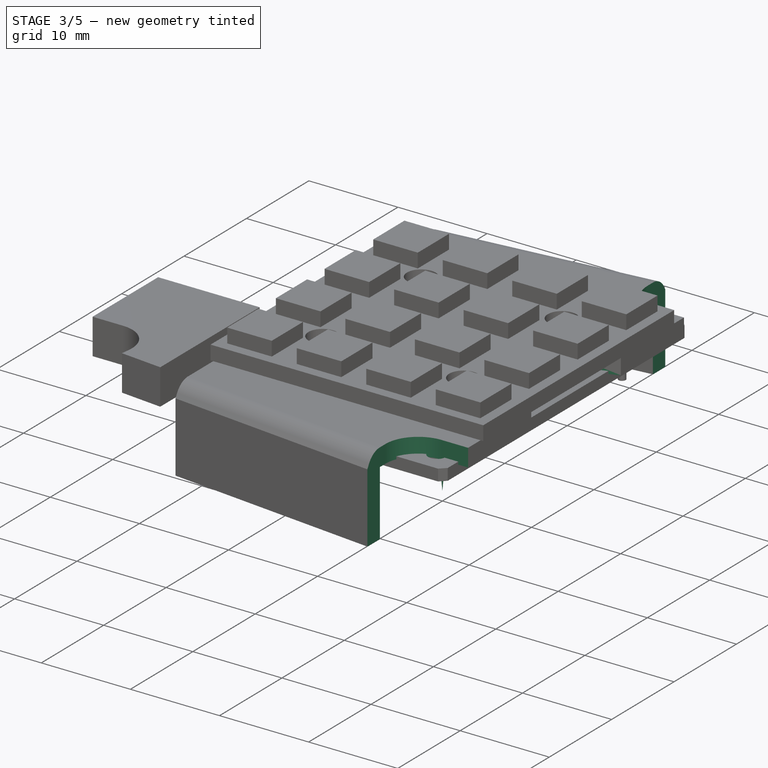
[diagram: stage 3 of 5 — iso view after this stage's code; geometry added in this stage tinted green]
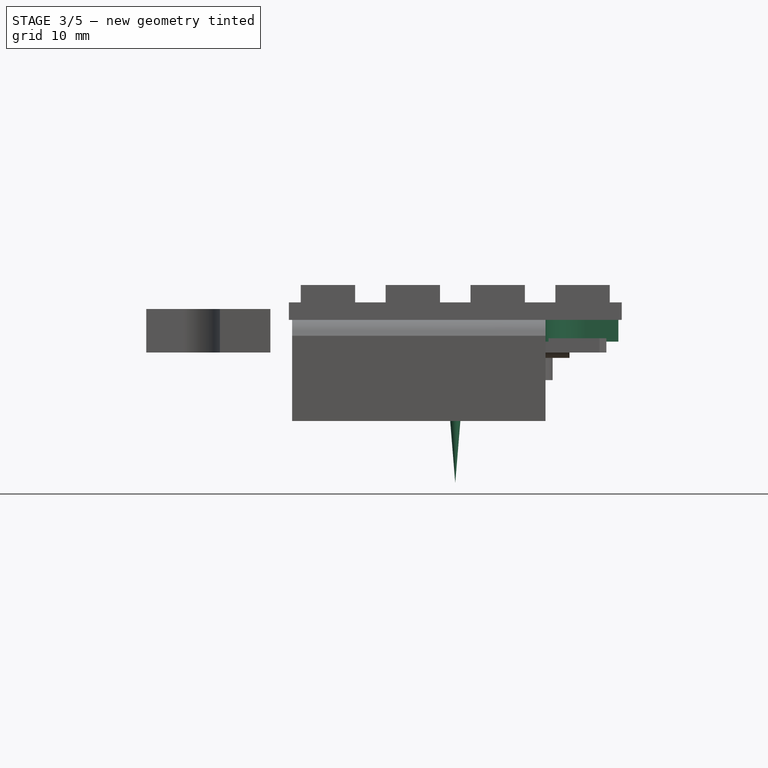
[diagram: stage 3 of 5 — front view after this stage's code; geometry added in this stage tinted green]
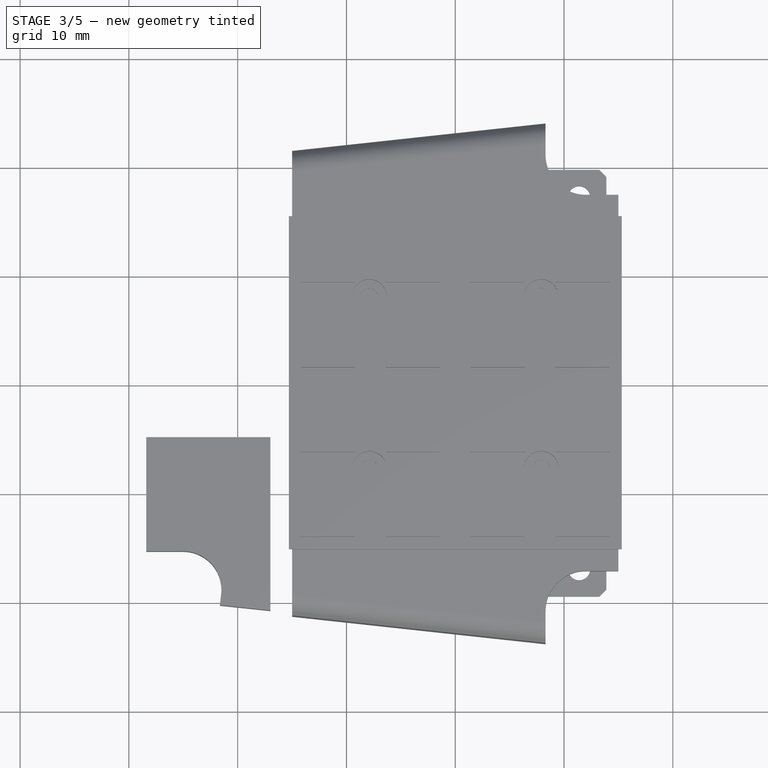
[diagram: stage 3 of 5 — top view after this stage's code; geometry added in this stage tinted green]
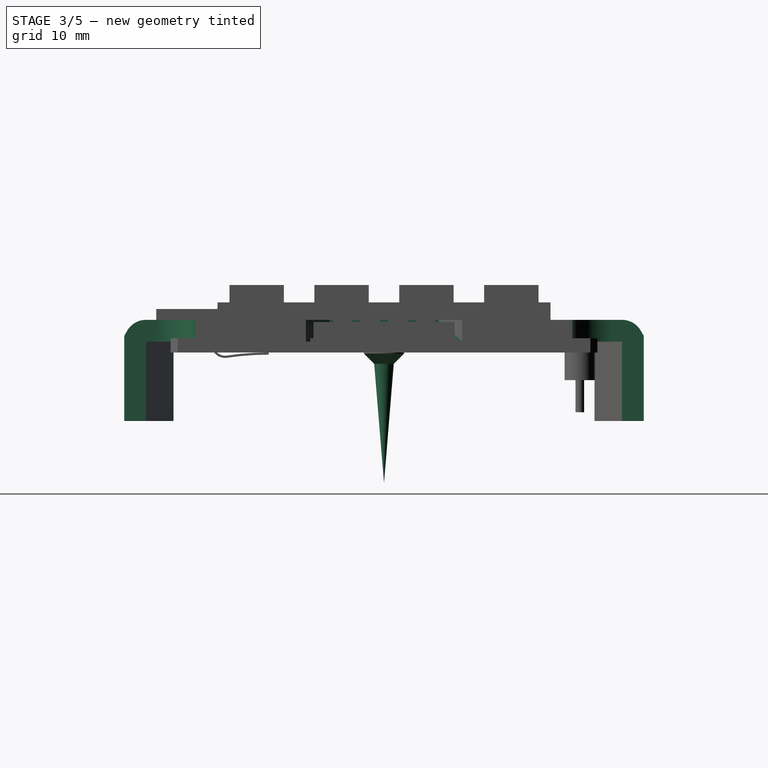
[diagram: stage 3 of 5 — right view after this stage's code; geometry added in this stage tinted green]
FEATURE [PartDesign::Body] Body008  label="SelftappingScrew 2.3x12 - Bottom3"
  Group = -> [Sketch016,Revolution004,Sketch015,Pocket004,PolarPattern004]
  Placement = pos=(-25,-19,-6.7) rot=(0,1,0;3.14159rad)
  Tip = -> PolarPattern004
FEATURE [Sketcher::SketchObject] Sketch017
  FullyConstrained = false
  MapMode = 5
  Placement = pos=(0,0,0) rot=(1,0,0;1.5708rad)
  sketch-geometry (5):
    g0: LineSegment StartX=0 StartY=0 StartZ=0 EndX=0 EndY=-12 EndZ=0
    g1: LineSegment StartX=0 StartY=-12 StartZ=0 EndX=0.9 EndY=-1.05 EndZ=0
    g2: LineSegment StartX=0.9 StartY=-1.05 StartZ=0 EndX=1.85 EndY=-0.1 EndZ=0
    g3: LineSegment StartX=1.85 StartY=0 StartZ=0 EndX=0 EndY=0 EndZ=0
    g4: LineSegment StartX=1.85 StartY=-0.1 StartZ=0 EndX=1.85 EndY=0 EndZ=0
  constraints (14):
    c: Coincident(g-1,g0)
    c: Vertical(g0)
    c: Coincident(g0,g1)
    c: Coincident(g1,g2)
    c: Coincident(g3,g0)
    c: DistanceY(g0,g0) = 12
    c: Angle(g3,g2) = 0.785398
    c: DistanceX(g0,g1) = 0.9
    c: Horizontal(g3)
    c: Coincident(g4,g2)
    c: Vertical(g4)
    c: Coincident(g3,g4)
    c: DistanceX(g3) = 1.85
    c: DistanceY(g4,g4) = 0.1
FEATURE [Sketcher::SketchObject] Sketch018
  FullyConstrained = false
  MapMode = 5
  Placement = pos=(0,0,0) rot=(1,0,0;1.5708rad)
  sketch-geometry (3):
    g0: LineSegment StartX=-1.15 StartY=0 StartZ=0 EndX=0 EndY=-1.15 EndZ=0
    g1: LineSegment StartX=0 StartY=-1.15 StartZ=0 EndX=1.15 EndY=0 EndZ=0
    g2: LineSegment StartX=1.15 StartY=0 StartZ=0 EndX=-1.15 EndY=0 EndZ=0
  constraints (9):
    c: PointOnObject(g0,g-1)
    c: Coincident(g0,g1)
    c: PointOnObject(g1,g-1)
    c: Coincident(g1,g2)
    c: Coincident(g2,g0)
    c: PointOnObject(g0,g-2)
    c: Equal(g1,g0)
    c: Perpendicular(g0,g1)
    c: DistanceX(g2,g2) = 2.3
FEATURE [PartDesign::Revolution] Revolution005
  AllowMultiFace = false
  Angle = 360
  Axis = (0,2e-16,1)
  Base = (0,0,0)
  Placement = pos=(0,0,0) rot=(1,0,0;1.5708rad)
  Profile = -> Sketch017
  ReferenceAxis = -> Sketch017 [V_Axis]
  Reversed = true
FEATURE [PartDesign::Pocket] Pocket027  label="M Screw holes"
  AllowMultiFace = false
  BaseFeature = -> AdditiveLoft
  Direction = (1,1,1)
  Length = 5
  Length2 = 100
  Midplane = true
  Placement = pos=(0,0,0) rot=(0.57735,0.57735,0.57735;2.0944rad)
  Profile = -> Sketch047
  Type = 1
FEATURE [PartDesign::Pocket] Pocket028  label="M Wire cutout"
  AllowMultiFace = false
  BaseFeature = -> Pocket027
  Direction = (1,1,1)
  Length = 5
  Length2 = 100
  Midplane = true
  Placement = pos=(0,0,0) rot=(0.57735,0.57735,0.57735;2.0944rad)
  Profile = -> Sketch048
  Type = 1
FEATURE [PartDesign::Pocket] Pocket030  label="M Cutout for bottom right"
  AllowMultiFace = false
  BaseFeature = -> Pocket028
  Direction = (1,1,1)
  Length = 5
  Length2 = 100
  Midplane = true
  Placement = pos=(0,0,0) rot=(0.57735,0.57735,0.57735;2.0944rad)
  Profile = -> Sketch050
  Type = 1
FEATURE [PartDesign::Mirrored] Mirrored011  label="M Cutout and lock left"
  BaseFeature = -> Pocket030
  MirrorPlane = -> XZ_Plane007
  Originals = -> [Pocket030]
  Placement = pos=(0,0,0) rot=(0.57735,0.57735,0.57735;2.0944rad)
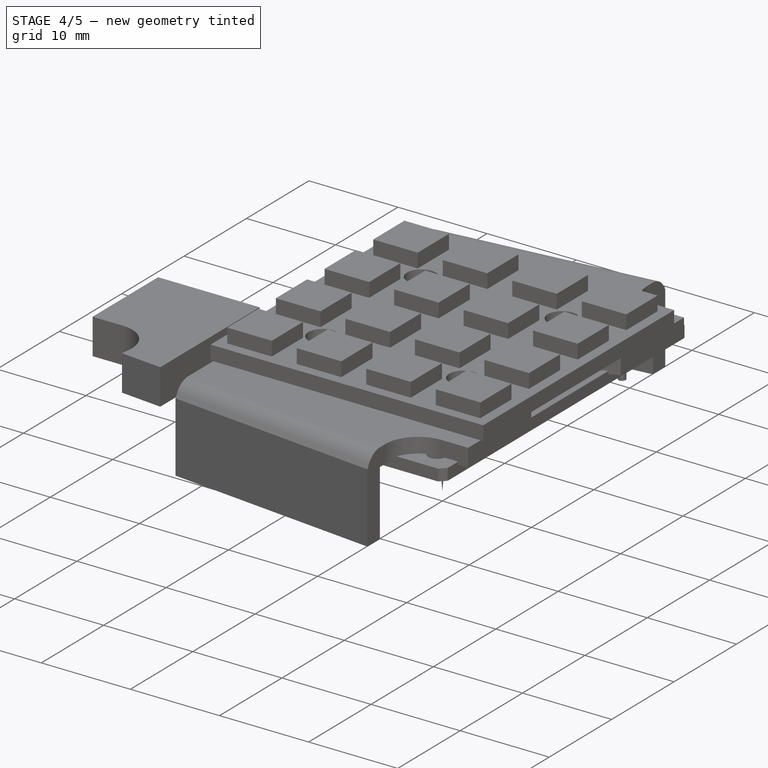
[diagram: stage 4 of 5 — iso view after this stage's code; geometry added in this stage tinted green]
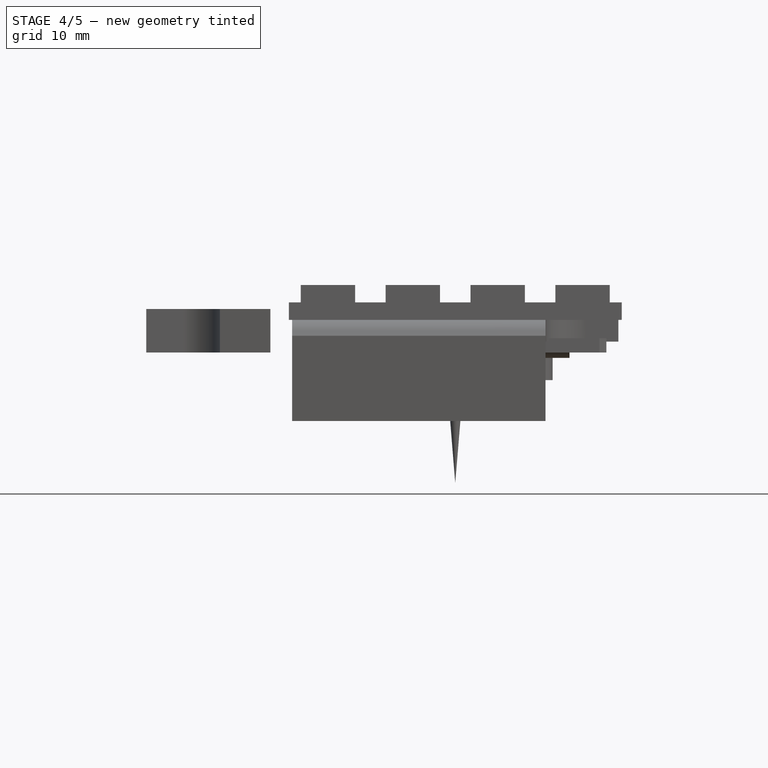
[diagram: stage 4 of 5 — front view after this stage's code; geometry added in this stage tinted green]
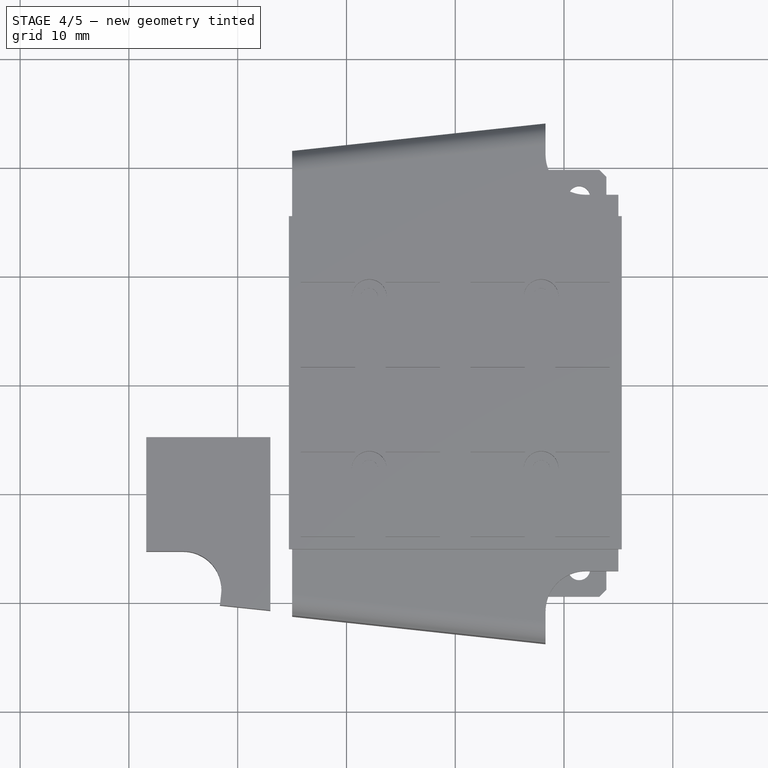
[diagram: stage 4 of 5 — top view after this stage's code; geometry added in this stage tinted green]
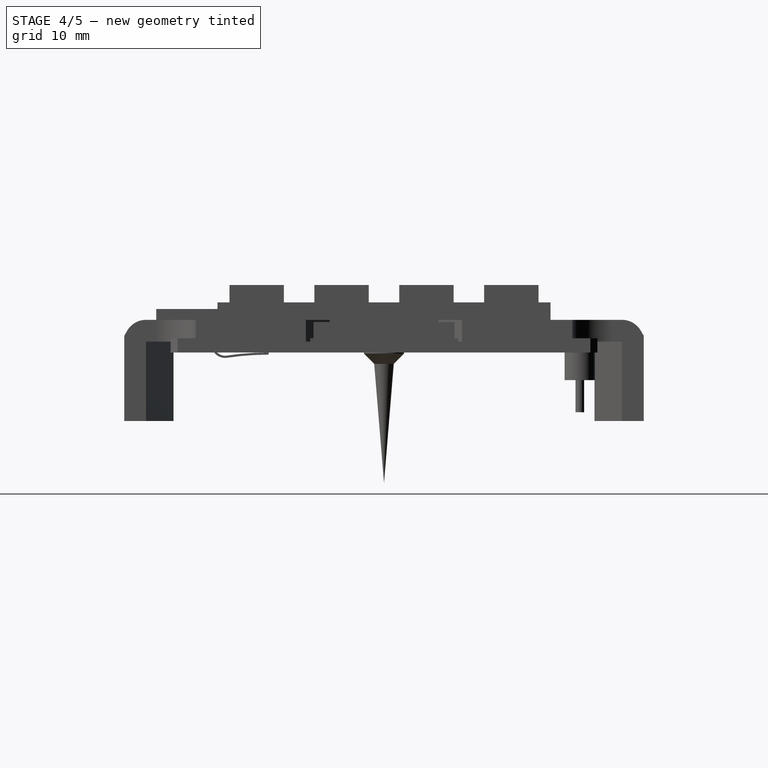
[diagram: stage 4 of 5 — right view after this stage's code; geometry added in this stage tinted green]
FEATURE [PartDesign::Body] Body006  label="SelftappingScrew 2.3x12 - Bottom1"
  Group = -> [Sketch012,Revolution002,Sketch011,Pocket002,PolarPattern002]
  Placement = pos=(12,21,-6.7) rot=(0,1,0;3.14159rad)
  Tip = -> PolarPattern002
FEATURE [Sketcher::SketchObject] Sketch013
  FullyConstrained = false
  MapMode = 5
  Placement = pos=(0,0,0) rot=(1,0,0;1.5708rad)
  sketch-geometry (5):
    g0: LineSegment StartX=0 StartY=0 StartZ=0 EndX=0 EndY=-12 EndZ=0
    g1: LineSegment StartX=0 StartY=-12 StartZ=0 EndX=0.9 EndY=-1.05 EndZ=0
    g2: LineSegment StartX=0.9 StartY=-1.05 StartZ=0 EndX=1.85 EndY=-0.1 EndZ=0
    g3: LineSegment StartX=1.85 StartY=0 StartZ=0 EndX=0 EndY=0 EndZ=0
    g4: LineSegment StartX=1.85 StartY=-0.1 StartZ=0 EndX=1.85 EndY=0 EndZ=0
  constraints (14):
    c: Coincident(g-1,g0)
    c: Vertical(g0)
    c: Coincident(g0,g1)
    c: Coincident(g1,g2)
    c: Coincident(g3,g0)
    c: DistanceY(g0,g0) = 12
    c: Angle(g3,g2) = 0.785398
    c: DistanceX(g0,g1) = 0.9
    c: Horizontal(g3)
    c: Coincident(g4,g2)
    c: Vertical(g4)
    c: Coincident(g3,g4)
    c: DistanceX(g3) = 1.85
    c: DistanceY(g4,g4) = 0.1
FEATURE [Sketcher::SketchObject] Sketch014
  FullyConstrained = false
  MapMode = 5
  Placement = pos=(0,0,0) rot=(1,0,0;1.5708rad)
  sketch-geometry (3):
    g0: LineSegment StartX=-1.15 StartY=0 StartZ=0 EndX=0 EndY=-1.15 EndZ=0
    g1: LineSegment StartX=0 StartY=-1.15 StartZ=0 EndX=1.15 EndY=0 EndZ=0
    g2: LineSegment StartX=1.15 StartY=0 StartZ=0 EndX=-1.15 EndY=0 EndZ=0
  constraints (9):
    c: PointOnObject(g0,g-1)
    c: Coincident(g0,g1)
    c: PointOnObject(g1,g-1)
    c: Coincident(g1,g2)
    c: Coincident(g2,g0)
    c: PointOnObject(g0,g-2)
    c: Equal(g1,g0)
    c: Perpendicular(g0,g1)
    c: DistanceX(g2,g2) = 2.3
FEATURE [PartDesign::Revolution] Revolution003
  AllowMultiFace = false
  Angle = 360
  Axis = (0,2e-16,1)
  Base = (0,0,0)
  Placement = pos=(0,0,0) rot=(1,0,0;1.5708rad)
  Profile = -> Sketch013
  ReferenceAxis = -> Sketch013 [V_Axis]
  Reversed = true
FEATURE [PartDesign::Body] Body007  label="SelftappingScrew 2.3x12 - Bottom2"
  Group = -> [Sketch013,Revolution003,Sketch014,Pocket003,PolarPattern003]
  Placement = pos=(-25,19,-6.7) rot=(0,1,0;3.14159rad)
  Tip = -> PolarPattern003
FEATURE [Sketcher::SketchObject] Sketch015
  FullyConstrained = false
  MapMode = 5
  Placement = pos=(0,0,0) rot=(1,0,0;1.5708rad)
  sketch-geometry (3):
    g0: LineSegment StartX=-1.15 StartY=0 StartZ=0 EndX=0 EndY=-1.15 EndZ=0
    g1: LineSegment StartX=0 StartY=-1.15 StartZ=0 EndX=1.15 EndY=0 EndZ=0
    g2: LineSegment StartX=1.15 StartY=0 StartZ=0 EndX=-1.15 EndY=0 EndZ=0
  constraints (9):
    c: PointOnObject(g0,g-1)
    c: Coincident(g0,g1)
    c: PointOnObject(g1,g-1)
    c: Coincident(g1,g2)
    c: Coincident(g2,g0)
    c: PointOnObject(g0,g-2)
    c: Equal(g1,g0)
    c: Perpendicular(g0,g1)
    c: DistanceX(g2,g2) = 2.3
FEATURE [Sketcher::SketchObject] Sketch016
  FullyConstrained = false
  MapMode = 5
  Placement = pos=(0,0,0) rot=(1,0,0;1.5708rad)
  sketch-geometry (5):
    g0: LineSegment StartX=0 StartY=0 StartZ=0 EndX=0 EndY=-12 EndZ=0
    g1: LineSegment StartX=0 StartY=-12 StartZ=0 EndX=0.9 EndY=-1.05 EndZ=0
    g2: LineSegment StartX=0.9 StartY=-1.05 StartZ=0 EndX=1.85 EndY=-0.1 EndZ=0
    g3: LineSegment StartX=1.85 StartY=0 StartZ=0 EndX=0 EndY=0 EndZ=0
    g4: LineSegment StartX=1.85 StartY=-0.1 StartZ=0 EndX=1.85 EndY=0 EndZ=0
  constraints (14):
    c: Coincident(g-1,g0)
    c: Vertical(g0)
    c: Coincident(g0,g1)
    c: Coincident(g1,g2)
    c: Coincident(g3,g0)
    c: DistanceY(g0,g0) = 12
    c: Angle(g3,g2) = 0.785398
    c: DistanceX(g0,g1) = 0.9
    c: Horizontal(g3)
    c: Coincident(g4,g2)
    c: Vertical(g4)
    c: Coincident(g3,g4)
    c: DistanceX(g3) = 1.85
    c: DistanceY(g4,g4) = 0.1
FEATURE [PartDesign::Revolution] Revolution004
  AllowMultiFace = false
  Angle = 360
  Axis = (0,2e-16,1)
  Base = (0,0,0)
  Placement = pos=(0,0,0) rot=(1,0,0;1.5708rad)
  Profile = -> Sketch016
  ReferenceAxis = -> Sketch016 [V_Axis]
  Reversed = true
FEATURE [PartDesign::Pocket] Pocket004
  AllowMultiFace = false
  BaseFeature = -> Revolution004
  Direction = (1,1,1)
  Length = 0.4
  Length2 = 100
  Midplane = true
  Placement = pos=(0,0,0) rot=(1,0,0;1.5708rad)
  Profile = -> Sketch015
  Type = 0
FEATURE [PartDesign::PolarPattern] PolarPattern004
  Angle = 90
  Axis = -> Sketch015 [V_Axis]
  BaseFeature = -> Pocket004
  Occurrences = 2
  Originals = -> [Pocket004]
  Placement = pos=(0,0,0) rot=(1,0,0;1.5708rad)
FEATURE [PartDesign::Pocket] Pocket005
  AllowMultiFace = false
  BaseFeature = -> Revolution005
  Direction = (1,1,1)
  Length = 0.4
  Length2 = 100
  Midplane = true
  Placement = pos=(0,0,0) rot=(1,0,0;1.5708rad)
  Profile = -> Sketch018
  Type = 0
FEATURE [PartDesign::PolarPattern] PolarPattern005
  Angle = 90
  Axis = -> Sketch018 [V_Axis]
  BaseFeature = -> Pocket005
  Occurrences = 2
  Originals = -> [Pocket005]
  Placement = pos=(0,0,0) rot=(1,0,0;1.5708rad)
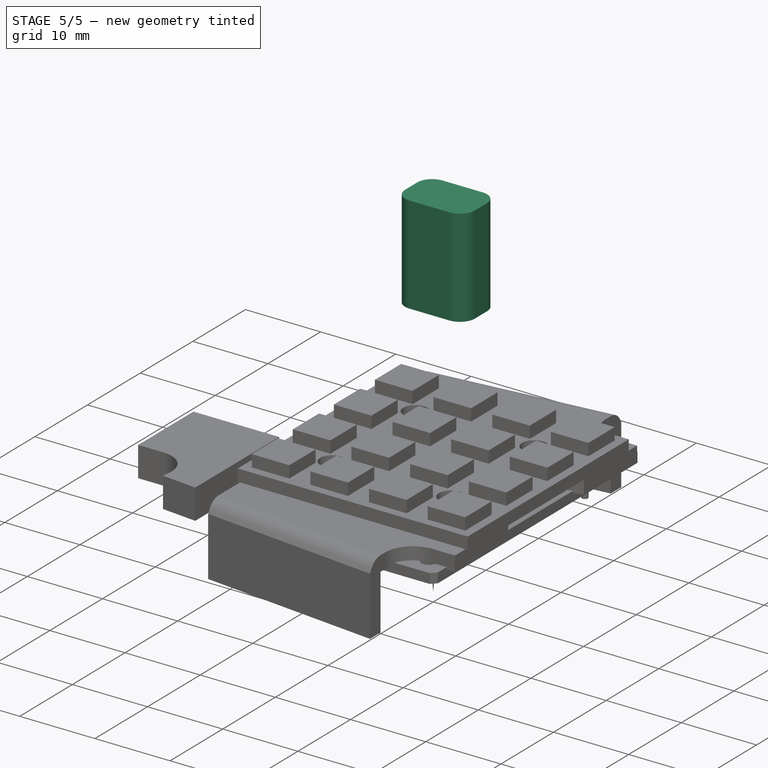
[diagram: stage 5 of 5 — iso view after this stage's code; geometry added in this stage tinted green]
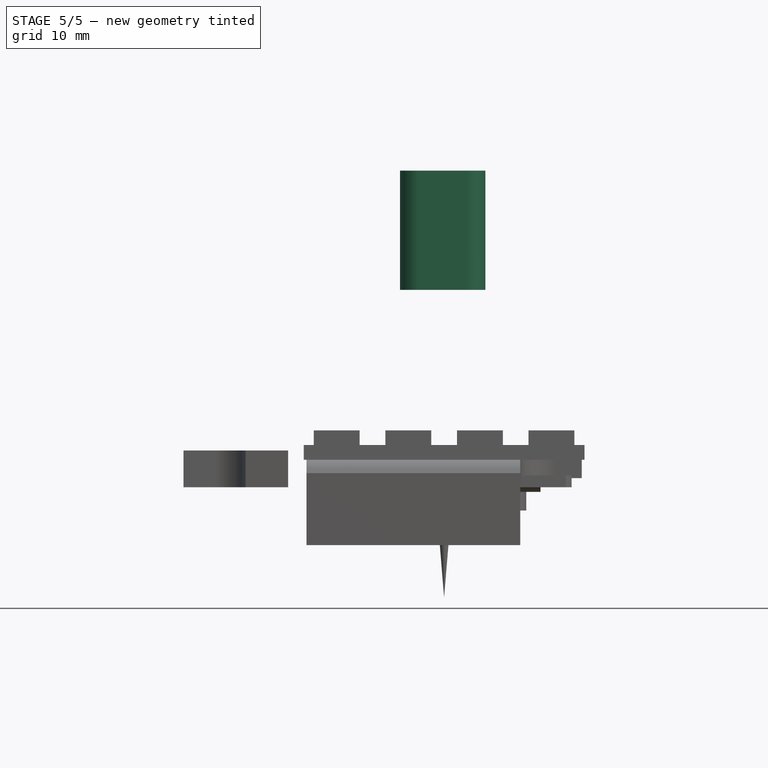
[diagram: stage 5 of 5 — front view after this stage's code; geometry added in this stage tinted green]
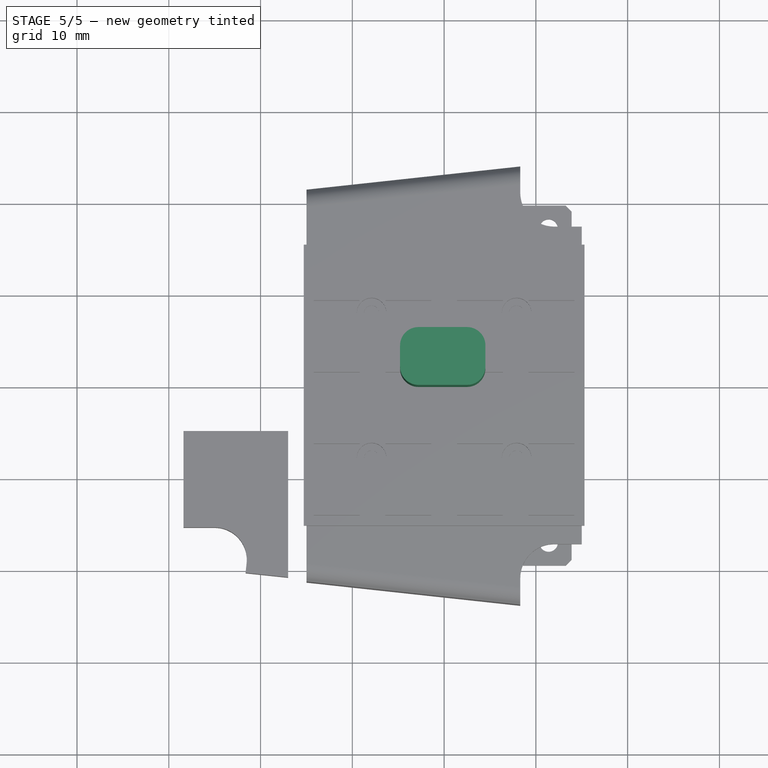
[diagram: stage 5 of 5 — top view after this stage's code; geometry added in this stage tinted green]
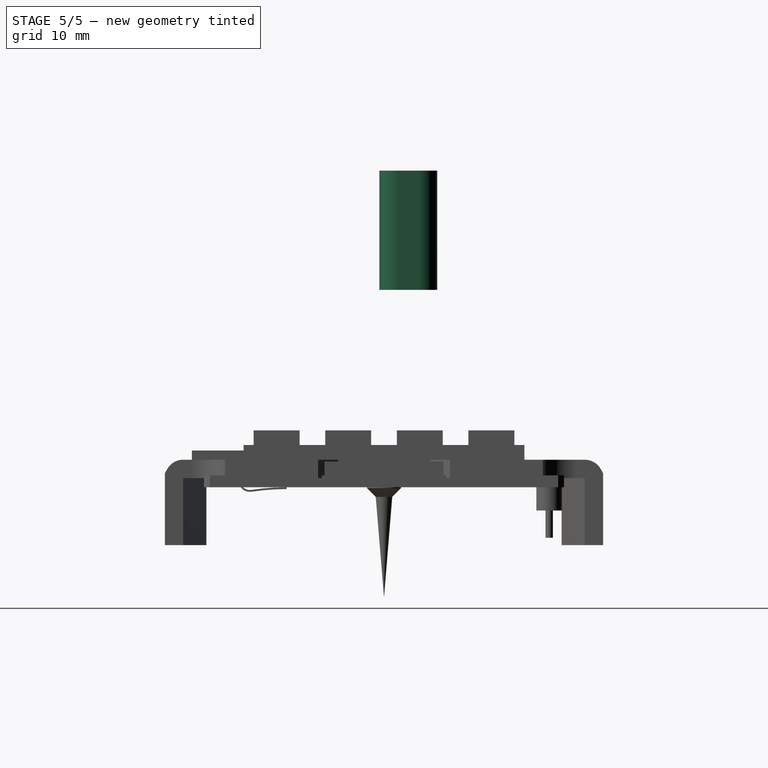
[diagram: stage 5 of 5 — right view after this stage's code; geometry added in this stage tinted green]
FEATURE [Part::Feature] Part__Feature  label="MH-ET_LIVE_MiniKit"
  Placement = pos=(-9,3e-15,-5) rot=(0.57735,-0.57735,-0.57735;2.0944rad)
  shape: bbox 39.44 x 31.02 x 99.68 mm, 5494 faces, 23 solids (baked)
FEATURE [Sketcher::SketchObject] Sketch
  AttachmentOffset = pos=(0,0,21.5) rot=(0,0,1;0rad)
  FullyConstrained = false
  MapMode = 5
  Placement = pos=(0,0,21.5) rot=(0,0,1;0rad)
  Support = -> [XY_Plane]
  sketch-geometry (8):
    g0: LineSegment StartX=-2.8 StartY=5.8 StartZ=0 EndX=2.5 EndY=5.8 EndZ=0
    g1: LineSegment StartX=4.5 StartY=3.8 StartZ=0 EndX=4.5 EndY=1.5 EndZ=0
    g2: LineSegment StartX=2.5 StartY=-0.5 StartZ=0 EndX=-2.8 EndY=-0.5 EndZ=0
    g3: LineSegment StartX=-4.8 StartY=1.5 StartZ=0 EndX=-4.8 EndY=3.8 EndZ=0
    g4: ArcOfCircle CenterX=2.5 CenterY=1.5 CenterZ=0 NormalX=0 NormalY=0 NormalZ=1 AngleXU=0 Radius=2 StartAngle=4.71239 EndAngle=6.28319
    g5: ArcOfCircle CenterX=2.5 CenterY=3.8 CenterZ=0 NormalX=0 NormalY=0 NormalZ=1 AngleXU=0 Radius=2 StartAngle=0 EndAngle=1.5708
    g6: ArcOfCircle CenterX=-2.8 CenterY=3.8 CenterZ=0 NormalX=0 NormalY=0 NormalZ=1 AngleXU=0 Radius=2 StartAngle=1.5708 EndAngle=3.14159
    g7: ArcOfCircle CenterX=-2.8 CenterY=1.5 CenterZ=0 NormalX=0 NormalY=0 NormalZ=1 AngleXU=0 Radius=2 StartAngle=3.14159 EndAngle=4.71239
  constraints (20):
    c: Horizontal(g2)
    c: Vertical(g1)
    c: Vertical(g3)
    c: Tangent(g2,g4) = 1.5708
    c: Tangent(g1,g4) = 1.5708
    c: Tangent(g1,g5) = 1.5708
    c: Tangent(g0,g5) = 1.5708
    c: Tangent(g0,g6) = 1.5708
    c: Tangent(g3,g6) = 1.5708
    c: Tangent(g3,g7) = 1.5708
    c: Tangent(g2,g7) = 1.5708
    c: Equal(g7,g4)
    c: Equal(g4,g5)
    c: Equal(g5,g6)
    c: DistanceX(g3,g1) = 9.3
    c: DistanceY(g2,g0) = 6.3
    c: DistanceY(g-1,g2) = -0.5
    c: DistanceX(g1) = 4.5
    c: Radius(g5) = 2
    c: Horizontal(g0)
FEATURE [PartDesign::Pad] Pad
  AllowMultiFace = false
  Direction = (1,1,1)
  Length = 13
  Length2 = 100
  Profile = -> Sketch
  Type = 0
FEATURE [PartDesign::Body] Body  label="USB connector"
  Group = -> [Sketch,Pad]
  Origin = -> Origin
  Placement = pos=(-8,3e-15,-5) rot=(0.57735,-0.57735,-0.57735;2.0944rad)
  Tip = -> Pad
FEATURE [Sketcher::SketchObject] Sketch011
  FullyConstrained = false
  MapMode = 5
  Placement = pos=(0,0,0) rot=(1,0,0;1.5708rad)
  sketch-geometry (3):
    g0: LineSegment StartX=-1.15 StartY=0 StartZ=0 EndX=0 EndY=-1.15 EndZ=0
    g1: LineSegment StartX=0 StartY=-1.15 StartZ=0 EndX=1.15 EndY=0 EndZ=0
    g2: LineSegment StartX=1.15 StartY=0 StartZ=0 EndX=-1.15 EndY=0 EndZ=0
  constraints (9):
    c: PointOnObject(g0,g-1)
    c: Coincident(g0,g1)
    c: PointOnObject(g1,g-1)
    c: Coincident(g1,g2)
    c: Coincident(g2,g0)
    c: PointOnObject(g0,g-2)
    c: Equal(g1,g0)
    c: Perpendicular(g0,g1)
    c: DistanceX(g2,g2) = 2.3
FEATURE [Sketcher::SketchObject] Sketch012
  FullyConstrained = false
  MapMode = 5
  Placement = pos=(0,0,0) rot=(1,0,0;1.5708rad)
  sketch-geometry (5):
    g0: LineSegment StartX=0 StartY=0 StartZ=0 EndX=0 EndY=-12 EndZ=0
    g1: LineSegment StartX=0 StartY=-12 StartZ=0 EndX=0.9 EndY=-1.05 EndZ=0
    g2: LineSegment StartX=0.9 StartY=-1.05 StartZ=0 EndX=1.85 EndY=-0.1 EndZ=0
    g3: LineSegment StartX=1.85 StartY=0 StartZ=0 EndX=0 EndY=0 EndZ=0
    g4: LineSegment StartX=1.85 StartY=-0.1 StartZ=0 EndX=1.85 EndY=0 EndZ=0
  constraints (14):
    c: Coincident(g-1,g0)
    c: Vertical(g0)
    c: Coincident(g0,g1)
    c: Coincident(g1,g2)
    c: Coincident(g3,g0)
    c: DistanceY(g0,g0) = 12
    c: Angle(g3,g2) = 0.785398
    c: DistanceX(g0,g1) = 0.9
    c: Horizontal(g3)
    c: Coincident(g4,g2)
    c: Vertical(g4)
    c: Coincident(g3,g4)
    c: DistanceX(g3) = 1.85
    c: DistanceY(g4,g4) = 0.1
FEATURE [PartDesign::Revolution] Revolution002
  AllowMultiFace = false
  Angle = 360
  Axis = (0,2e-16,1)
  Base = (0,0,0)
  Placement = pos=(0,0,0) rot=(1,0,0;1.5708rad)
  Profile = -> Sketch012
  ReferenceAxis = -> Sketch012 [V_Axis]
  Reversed = true
FEATURE [PartDesign::Pocket] Pocket002
  AllowMultiFace = false
  BaseFeature = -> Revolution002
  Direction = (1,1,1)
  Length = 0.4
  Length2 = 100
  Midplane = true
  Placement = pos=(0,0,0) rot=(1,0,0;1.5708rad)
  Profile = -> Sketch011
  Type = 0
FEATURE [PartDesign::PolarPattern] PolarPattern002
  Angle = 90
  Axis = -> Sketch011 [V_Axis]
  BaseFeature = -> Pocket002
  Occurrences = 2
  Originals = -> [Pocket002]
  Placement = pos=(0,0,0) rot=(1,0,0;1.5708rad)
FEATURE [PartDesign::Pocket] Pocket003
  AllowMultiFace = false
  BaseFeature = -> Revolution003
  Direction = (1,1,1)
  Length = 0.4
  Length2 = 100
  Midplane = true
  Placement = pos=(0,0,0) rot=(1,0,0;1.5708rad)
  Profile = -> Sketch014
  Type = 0
FEATURE [PartDesign::PolarPattern] PolarPattern003
  Angle = 90
  Axis = -> Sketch014 [V_Axis]
  BaseFeature = -> Pocket003
  Occurrences = 2
  Originals = -> [Pocket003]
  Placement = pos=(0,0,0) rot=(1,0,0;1.5708rad)
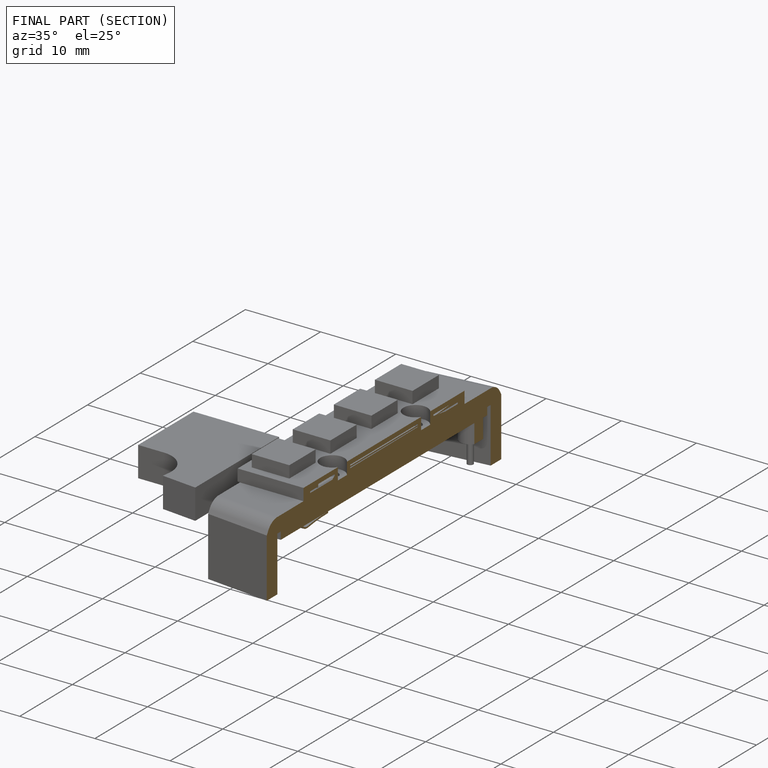
[diagram: finished part — half-section view (interior)]
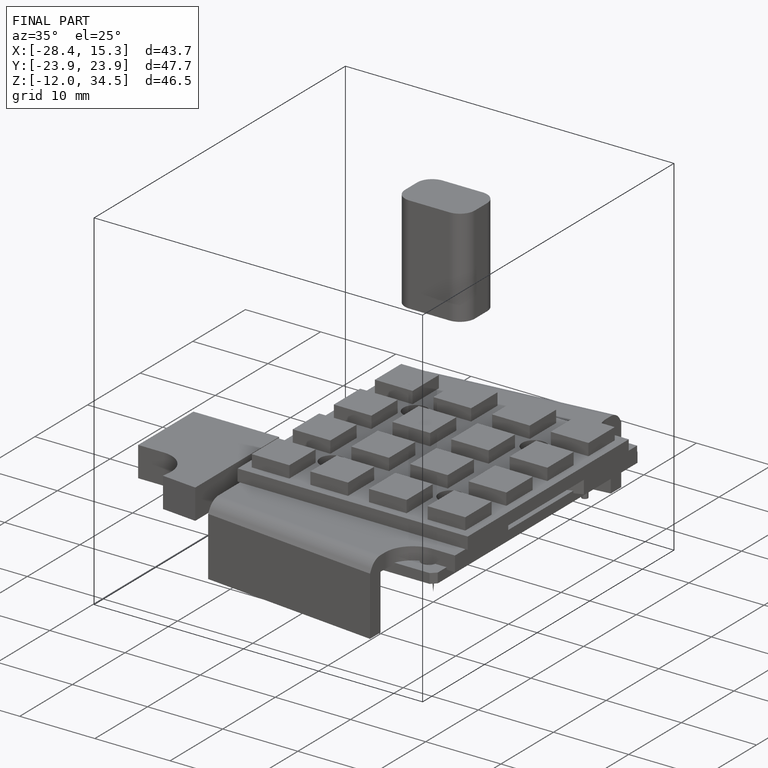
[diagram: finished part — iso view with bounding-box wireframe]
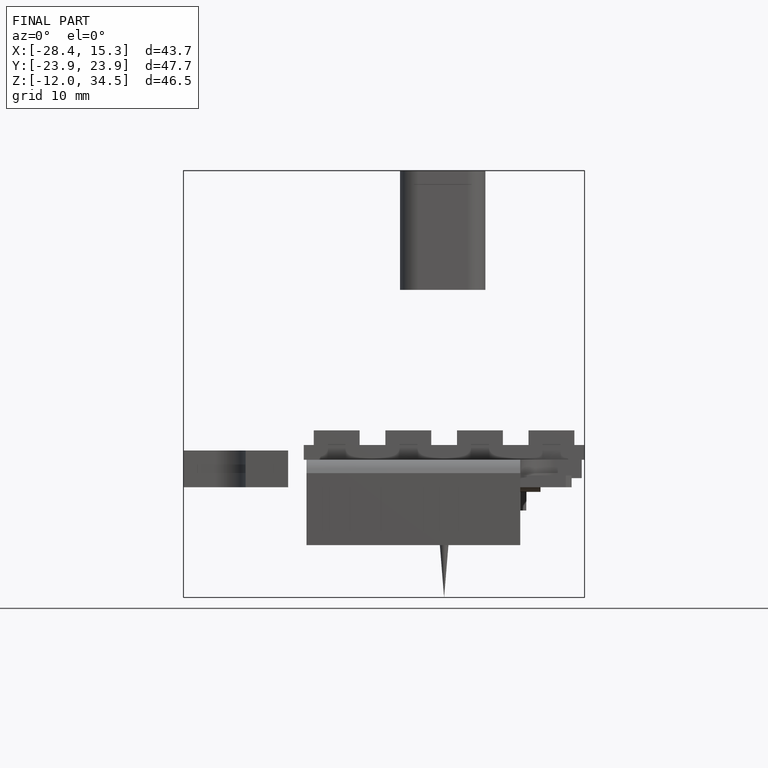
[diagram: finished part — front view with bounding-box wireframe]
